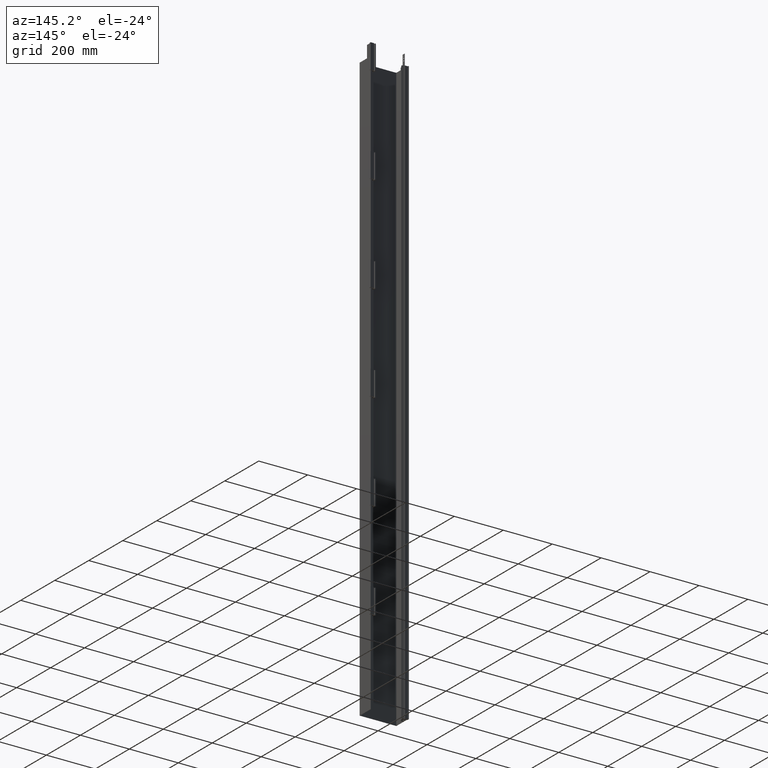
[diagram: clean part render]
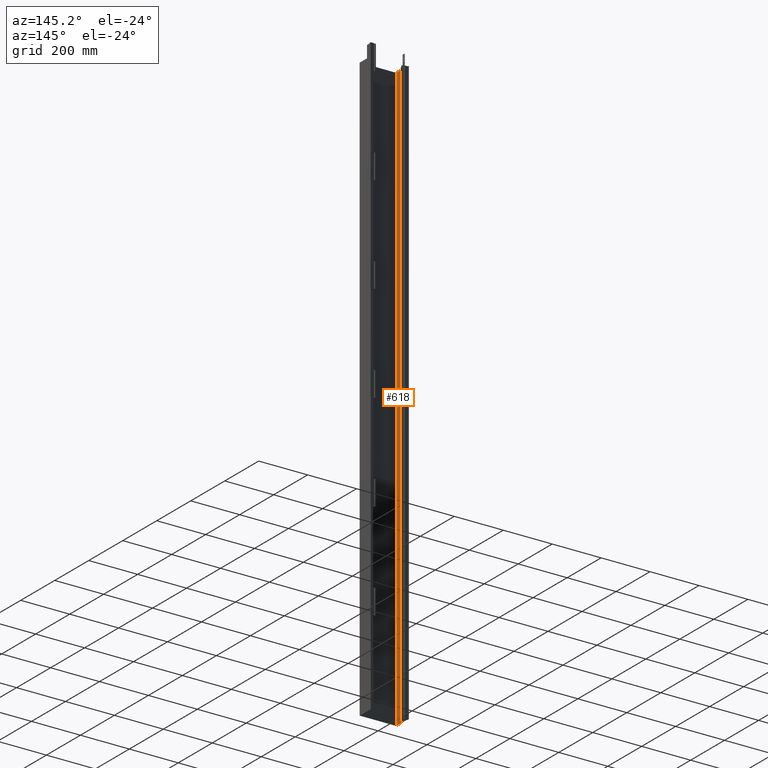
[diagram: same view with one face highlighted and labeled with its STEP entity id]
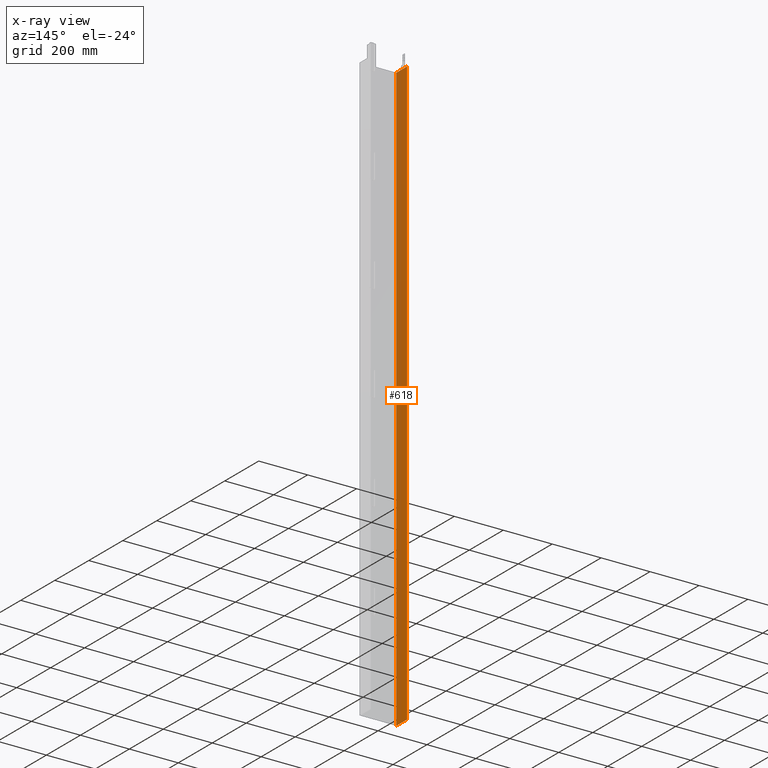
[diagram: x-ray of the same camera — body ghosted, the highlighted face saturated]
A machine part, auxiliary view. The second image highlights one B-rep face of the part: STEP entity #618.
The next image is the same camera in x-ray: the body ghosted, the highlighted face saturated — about 0% of this face is hidden behind the body in this view.
In plain terms, the highlighted planar face has unit normal (1, 0, 0).
Its self-contained STEP definition (entity closure, byte-faithful):
#302=DIRECTION('',(0.E0,1.E0,0.E0));
#303=VECTOR('',#302,6.3E1);
#304=CARTESIAN_POINT('',(-7.4E1,1.E0,0.E0));
#305=LINE('',#304,#303);
#358=DIRECTION('',(0.E0,0.E0,-1.E0));
#359=VECTOR('',#358,2.4E3);
#360=CARTESIAN_POINT('',(-7.4E1,1.E0,0.E0));
#361=LINE('',#360,#359);
#362=DIRECTION('',(0.E0,0.E0,-1.E0));
#363=VECTOR('',#362,2.4E3);
#364=CARTESIAN_POINT('',(-7.4E1,6.4E1,0.E0));
#365=LINE('',#364,#363);
#406=DIRECTION('',(0.E0,1.E0,0.E0));
#407=VECTOR('',#406,6.3E1);
#408=CARTESIAN_POINT('',(-7.4E1,1.E0,-2.4E3));
#409=LINE('',#408,#407);
#440=CARTESIAN_POINT('',(-7.4E1,1.E0,0.E0));
#441=VERTEX_POINT('',#440);
#442=CARTESIAN_POINT('',(-7.4E1,6.4E1,0.E0));
#443=VERTEX_POINT('',#442);
#464=CARTESIAN_POINT('',(-7.4E1,1.E0,-2.4E3));
#465=VERTEX_POINT('',#464);
#466=CARTESIAN_POINT('',(-7.4E1,6.4E1,-2.4E3));
#467=VERTEX_POINT('',#466);
#605=CARTESIAN_POINT('',(-7.4E1,1.E0,0.E0));
#606=DIRECTION('',(1.E0,0.E0,0.E0));
#607=DIRECTION('',(0.E0,1.E0,0.E0));
#608=AXIS2_PLACEMENT_3D('',#605,#606,#607);
#609=PLANE('',#608);
#610=ORIENTED_EDGE('',*,*,#489,.T.);
#612=ORIENTED_EDGE('',*,*,#611,.T.);
#614=ORIENTED_EDGE('',*,*,#613,.F.);
#615=ORIENTED_EDGE('',*,*,#597,.F.);
#616=EDGE_LOOP('',(#610,#612,#614,#615));
#617=FACE_OUTER_BOUND('',#616,.F.);
#489=EDGE_CURVE('',#441,#443,#305,.T.);
#597=EDGE_CURVE('',#441,#465,#361,.T.);
#611=EDGE_CURVE('',#443,#467,#365,.T.);
#613=EDGE_CURVE('',#465,#467,#409,.T.);
#618=ADVANCED_FACE('',(#617),#609,.T.);